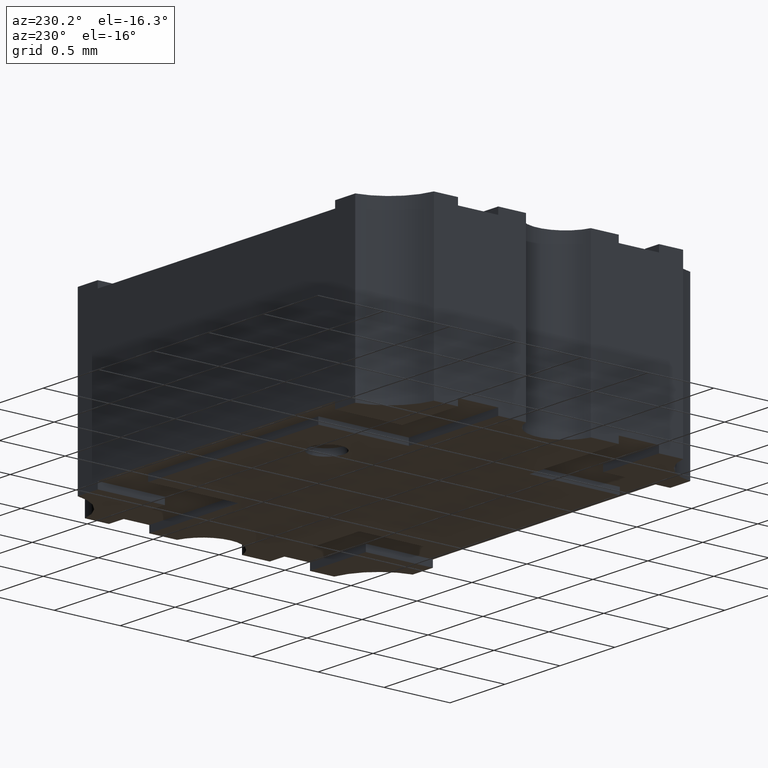
[diagram: clean part render]
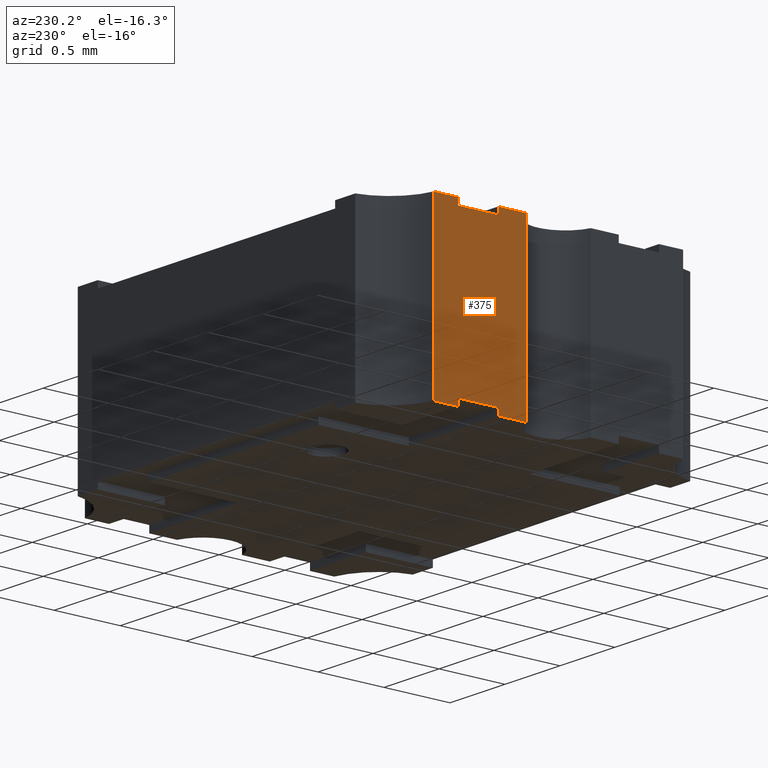
[diagram: same view with one face highlighted and labeled with its STEP entity id]
A machine part, auxiliary view. The second image highlights one B-rep face of the part: STEP entity #375.
In plain terms, the highlighted planar face has unit normal (1, 0, 0).
Its self-contained STEP definition (entity closure, byte-faithful):
#15 = LINE ( 'NONE', #1154, #2213 ) ;
#18 = CARTESIAN_POINT ( 'NONE',  ( -0.06250000000204736228, 0.009682458379503764909, 0.000000000000000000 ) ) ;
#19 = LINE ( 'NONE', #1166, #1545 ) ;
#25 = CARTESIAN_POINT ( 'NONE',  ( -0.06250000000204736228, 0.009682458379503770113, 0.04999999999999999584 ) ) ;
#276 = EDGE_CURVE ( 'NONE', #595, #2133, #399, .T. ) ;
#284 = EDGE_CURVE ( 'NONE', #1379, #1727, #15, .T. ) ;
#299 = CARTESIAN_POINT ( 'NONE',  ( -0.06250000001079591971, 0.01799419439605206075, 0.04800000000000000100 ) ) ;
#310 = LINE ( 'NONE', #1597, #728 ) ;
#323 = ORIENTED_EDGE ( 'NONE', *, *, #276, .T. ) ;
#352 = DIRECTION ( 'NONE',  ( 1.000000000000000000, 0.000000000000000000, 0.000000000000000000 ) ) ;
#366 = LINE ( 'NONE', #593, #2402 ) ;
#375 = ADVANCED_FACE ( 'NONE', ( #1806 ), #1676, .F. ) ;
#380 = CARTESIAN_POINT ( 'NONE',  ( -0.06250000000204736228, 0.009682458379503764909, 0.002000000000000000042 ) ) ;
#399 = LINE ( 'NONE', #1907, #2008 ) ;
#421 = VECTOR ( 'NONE', #1999, 39.37007874015748143 ) ;
#426 = EDGE_CURVE ( 'NONE', #1039, #1312, #941, .T. ) ;
#445 = EDGE_CURVE ( 'NONE', #2133, #1694, #366, .T. ) ;
#446 = VERTEX_POINT ( 'NONE', #25 ) ;
#489 = LINE ( 'NONE', #1237, #1524 ) ;
#493 = LINE ( 'NONE', #1241, #1246 ) ;
#539 = CARTESIAN_POINT ( 'NONE',  ( -0.06250000000204736228, 0.03720294145946440034, 0.000000000000000000 ) ) ;
#593 = CARTESIAN_POINT ( 'NONE',  ( -0.06250000000204736228, 0.03720294145946440034, 0.002000000000000000042 ) ) ;
#595 = VERTEX_POINT ( 'NONE', #2195 ) ;
#654 = VERTEX_POINT ( 'NONE', #1434 ) ;
#702 = ORIENTED_EDGE ( 'NONE', *, *, #1688, .T. ) ;
#716 = EDGE_CURVE ( 'NONE', #1312, #1318, #19, .T. ) ;
#728 = VECTOR ( 'NONE', #2340, 39.37007874015748143 ) ;
#823 = CARTESIAN_POINT ( 'NONE',  ( -0.06250000000204736228, 0.05250000000024280383, 0.04999999999999999584 ) ) ;
#935 = ORIENTED_EDGE ( 'NONE', *, *, #445, .T. ) ;
#941 = LINE ( 'NONE', #1544, #1972 ) ;
#972 = LINE ( 'NONE', #18, #1339 ) ;
#1013 = VECTOR ( 'NONE', #1956, 39.37007874015748143 ) ;
#1039 = VERTEX_POINT ( 'NONE', #1986 ) ;
#1058 = LINE ( 'NONE', #299, #421 ) ;
#1095 = ORIENTED_EDGE ( 'NONE', *, *, #1920, .F. ) ;
#1105 = DIRECTION ( 'NONE',  ( 0.000000000000000000, 0.000000000000000000, -1.000000000000000000 ) ) ;
#1130 = DIRECTION ( 'NONE',  ( -0.000000000000000000, -0.000000000000000000, -1.000000000000000000 ) ) ;
#1154 = CARTESIAN_POINT ( 'NONE',  ( -0.06250000001079591971, 0.05250000000024280383, 0.04800000000000000100 ) ) ;
#1158 = DIRECTION ( 'NONE',  ( -0.000000000000000000, -1.000000000000000000, -0.000000000000000000 ) ) ;
#1166 = CARTESIAN_POINT ( 'NONE',  ( -0.06250000000204736228, 0.009682458379503764909, 0.000000000000000000 ) ) ;
#1199 = LINE ( 'NONE', #823, #1013 ) ;
#1237 = CARTESIAN_POINT ( 'NONE',  ( -0.06250000001079591971, 0.02999419437934408225, 0.04800000000000000100 ) ) ;
#1241 = CARTESIAN_POINT ( 'NONE',  ( -0.06249999990211663192, 0.01799419437934363097, 0.002000000000000000042 ) ) ;
#1246 = VECTOR ( 'NONE', #1995, 39.37007874015748143 ) ;
#1289 = CARTESIAN_POINT ( 'NONE',  ( -0.06250000000204736228, 0.03720294145946440034, 0.04999999999999999584 ) ) ;
#1295 = EDGE_CURVE ( 'NONE', #1811, #1039, #493, .T. ) ;
#1306 = AXIS2_PLACEMENT_3D ( 'NONE', #2431, #352, #1105 ) ;
#1312 = VERTEX_POINT ( 'NONE', #2292 ) ;
#1318 = VERTEX_POINT ( 'NONE', #1931 ) ;
#1339 = VECTOR ( 'NONE', #2096, 39.37007874015748143 ) ;
#1350 = DIRECTION ( 'NONE',  ( -0.000000000000000000, -0.000000000000000000, -1.000000000000000000 ) ) ;
#1379 = VERTEX_POINT ( 'NONE', #1746 ) ;
#1383 = VERTEX_POINT ( 'NONE', #1921 ) ;
#1415 = ORIENTED_EDGE ( 'NONE', *, *, #426, .T. ) ;
#1425 = EDGE_CURVE ( 'NONE', #1694, #654, #972, .T. ) ;
#1434 = CARTESIAN_POINT ( 'NONE',  ( -0.06249999990211663192, 0.02999419437934408225, 0.000000000000000000 ) ) ;
#1467 = DIRECTION ( 'NONE',  ( -0.000000000000000000, -0.000000000000000000, 1.000000000000000000 ) ) ;
#1489 = LINE ( 'NONE', #380, #1720 ) ;
#1518 = ORIENTED_EDGE ( 'NONE', *, *, #1903, .F. ) ;
#1524 = VECTOR ( 'NONE', #1467, 39.37007874015748143 ) ;
#1544 = CARTESIAN_POINT ( 'NONE',  ( -0.06249999990211663192, 0.01799419437934363097, 0.002000000000000000042 ) ) ;
#1545 = VECTOR ( 'NONE', #1158, 39.37007874015748143 ) ;
#1558 = ORIENTED_EDGE ( 'NONE', *, *, #716, .T. ) ;
#1597 = CARTESIAN_POINT ( 'NONE',  ( -0.06249999990211663192, 0.02999419437934408225, 0.002000000000000000042 ) ) ;
#1676 = PLANE ( 'NONE',  #1306 ) ;
#1684 = ORIENTED_EDGE ( 'NONE', *, *, #1425, .T. ) ;
#1688 = EDGE_CURVE ( 'NONE', #1727, #595, #489, .T. ) ;
#1694 = VERTEX_POINT ( 'NONE', #539 ) ;
#1703 = DIRECTION ( 'NONE',  ( 0.000000000000000000, 0.000000000000000000, -1.000000000000000000 ) ) ;
#1707 = ORIENTED_EDGE ( 'NONE', *, *, #1295, .T. ) ;
#1720 = VECTOR ( 'NONE', #1130, 39.37007874015748143 ) ;
#1727 = VERTEX_POINT ( 'NONE', #2018 ) ;
#1746 = CARTESIAN_POINT ( 'NONE',  ( -0.06250000001079591971, 0.01799419439605206075, 0.04800000000000000100 ) ) ;
#1755 = ORIENTED_EDGE ( 'NONE', *, *, #2426, .T. ) ;
#1806 = FACE_OUTER_BOUND ( 'NONE', #1836, .T. ) ;
#1811 = VERTEX_POINT ( 'NONE', #2063 ) ;
#1836 = EDGE_LOOP ( 'NONE', ( #1095, #2290, #702, #323, #935, #1684, #1518, #1707, #1415, #1558, #2285, #1755 ) ) ;
#1903 = EDGE_CURVE ( 'NONE', #1811, #654, #310, .T. ) ;
#1907 = CARTESIAN_POINT ( 'NONE',  ( -0.06250000000204736228, 0.05250000000024280383, 0.04999999999999999584 ) ) ;
#1917 = DIRECTION ( 'NONE',  ( 0.000000000000000000, 1.000000000000000000, 0.000000000000000000 ) ) ;
#1920 = EDGE_CURVE ( 'NONE', #1379, #1383, #1058, .T. ) ;
#1921 = CARTESIAN_POINT ( 'NONE',  ( -0.06250000001079591971, 0.01799419439605206075, 0.04999999999999999584 ) ) ;
#1931 = CARTESIAN_POINT ( 'NONE',  ( -0.06250000000204736228, 0.009682458379503764909, 0.000000000000000000 ) ) ;
#1956 = DIRECTION ( 'NONE',  ( 0.000000000000000000, 1.000000000000000000, 0.000000000000000000 ) ) ;
#1972 = VECTOR ( 'NONE', #1703, 39.37007874015748143 ) ;
#1986 = CARTESIAN_POINT ( 'NONE',  ( -0.06249999990211663192, 0.01799419437934363097, 0.002000000000000000042 ) ) ;
#1995 = DIRECTION ( 'NONE',  ( -0.000000000000000000, -1.000000000000000000, -0.000000000000000000 ) ) ;
#1999 = DIRECTION ( 'NONE',  ( -0.000000000000000000, -0.000000000000000000, 1.000000000000000000 ) ) ;
#2008 = VECTOR ( 'NONE', #1917, 39.37007874015748143 ) ;
#2018 = CARTESIAN_POINT ( 'NONE',  ( -0.06250000001079591971, 0.02999419437934408225, 0.04800000000000000100 ) ) ;
#2063 = CARTESIAN_POINT ( 'NONE',  ( -0.06249999990211663192, 0.02999419437934408225, 0.002000000000000000042 ) ) ;
#2096 = DIRECTION ( 'NONE',  ( -0.000000000000000000, -1.000000000000000000, -0.000000000000000000 ) ) ;
#2105 = EDGE_CURVE ( 'NONE', #446, #1318, #1489, .T. ) ;
#2133 = VERTEX_POINT ( 'NONE', #1289 ) ;
#2195 = CARTESIAN_POINT ( 'NONE',  ( -0.06250000001079591971, 0.02999419437934408225, 0.04999999999999999584 ) ) ;
#2213 = VECTOR ( 'NONE', #2303, 39.37007874015748143 ) ;
#2285 = ORIENTED_EDGE ( 'NONE', *, *, #2105, .F. ) ;
#2290 = ORIENTED_EDGE ( 'NONE', *, *, #284, .T. ) ;
#2292 = CARTESIAN_POINT ( 'NONE',  ( -0.06249999990211663192, 0.01799419437934363097, 0.000000000000000000 ) ) ;
#2303 = DIRECTION ( 'NONE',  ( 0.000000000000000000, 1.000000000000000000, 0.000000000000000000 ) ) ;
#2340 = DIRECTION ( 'NONE',  ( 0.000000000000000000, 0.000000000000000000, -1.000000000000000000 ) ) ;
#2402 = VECTOR ( 'NONE', #1350, 39.37007874015748143 ) ;
#2426 = EDGE_CURVE ( 'NONE', #446, #1383, #1199, .T. ) ;
#2431 = CARTESIAN_POINT ( 'NONE',  ( -0.06250000000204736228, 0.009682458379503764909, 0.002000000000000000042 ) ) ;